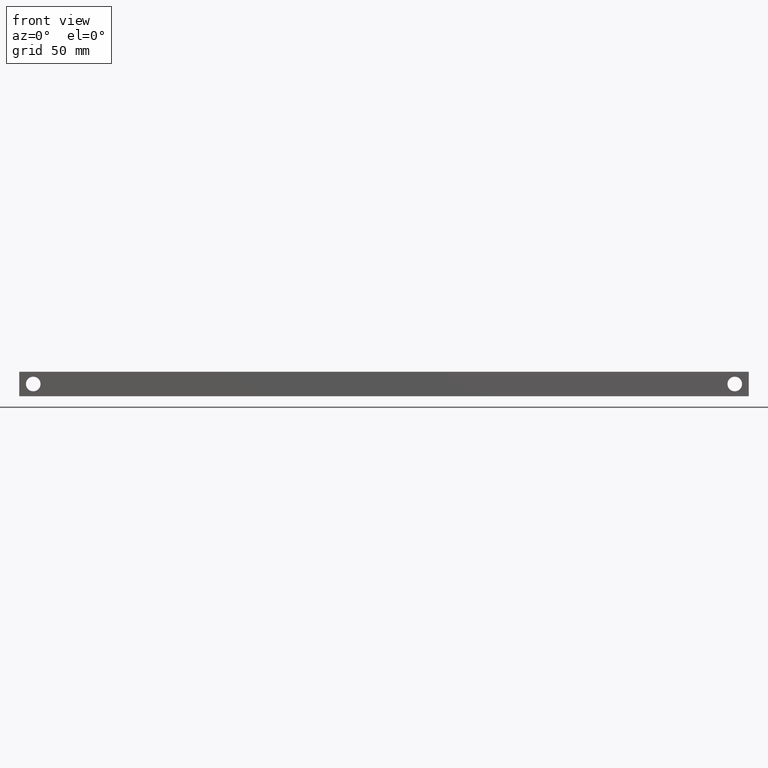
[diagram: clean part render]
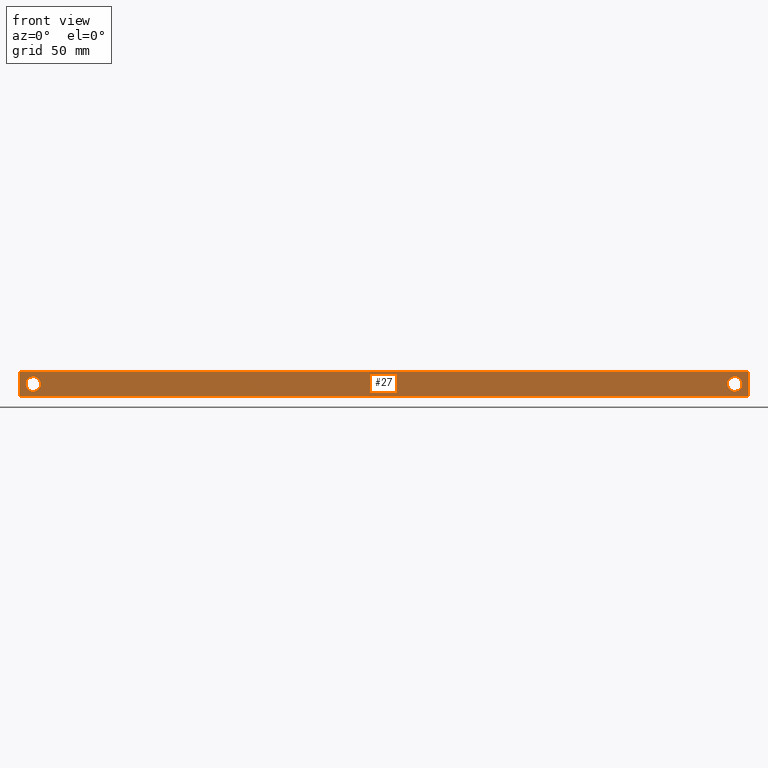
[diagram: same view with one face highlighted and labeled with its STEP entity id]
A machine part, front view. The second image highlights one B-rep face of the part: STEP entity #27.
In plain terms, the highlighted planar face has unit normal (0, -1, 0).
Its self-contained STEP definition (entity closure, byte-faithful):
#27 = ADVANCED_FACE ( 'NONE', ( #3004, #2987, #3000 ), #2989, .T. ) ;
#1316 = ORIENTED_EDGE ( 'NONE', *, *, #12153, .T. ) ;
#1318 = ORIENTED_EDGE ( 'NONE', *, *, #3733, .T. ) ;
#1324 = ORIENTED_EDGE ( 'NONE', *, *, #3827, .T. ) ;
#1328 = ORIENTED_EDGE ( 'NONE', *, *, #12134, .T. ) ;
#1334 = ORIENTED_EDGE ( 'NONE', *, *, #8565, .T. ) ;
#1350 = ORIENTED_EDGE ( 'NONE', *, *, #12154, .T. ) ;
#1373 = ORIENTED_EDGE ( 'NONE', *, *, #12124, .T. ) ;
#1375 = ORIENTED_EDGE ( 'NONE', *, *, #8544, .T. ) ;
#1679 = AXIS2_PLACEMENT_3D ( 'NONE', #9400, #9378, #9401 ) ;
#1720 = CIRCLE ( 'NONE', #1679, 2.999999999999990700 ) ;
#1747 = AXIS2_PLACEMENT_3D ( 'NONE', #9421, #9452, #9454 ) ;
#1781 = CIRCLE ( 'NONE', #1747, 2.999999999999990700 ) ;
#1802 = VECTOR ( 'NONE', #8752, 1000.000000000000000 ) ;
#1815 = VECTOR ( 'NONE', #8739, 1000.000000000000000 ) ;
#1862 = VECTOR ( 'NONE', #8828, 1000.000000000000000 ) ;
#1878 = VECTOR ( 'NONE', #8803, 1000.000000000000000 ) ;
#2987 = FACE_OUTER_BOUND ( 'NONE', #13171, .T. ) ;
#2988 = DIRECTION ( 'NONE',  ( 0.0000000000000000000, -0.0000000000000000000, -1.000000000000000000 ) ) ;
#2989 = PLANE ( 'NONE',  #7013 ) ;
#3000 = FACE_BOUND ( 'NONE', #13074, .T. ) ;
#3004 = FACE_BOUND ( 'NONE', #13220, .T. ) ;
#3009 = DIRECTION ( 'NONE',  ( 0.0000000000000000000, -1.000000000000000000, 0.0000000000000000000 ) ) ;
#3016 = CARTESIAN_POINT ( 'NONE',  ( 0.0000000000000000000, 0.0000000000000000000, -10.00000000000000000 ) ) ;
#3733 = EDGE_CURVE ( 'NONE', #12654, #12688, #6336, .T. ) ;
#3827 = EDGE_CURVE ( 'NONE', #12668, #12635, #6475, .T. ) ;
#5460 = DIRECTION ( 'NONE',  ( 0.0000000000000000000, 1.000000000000000000, 0.0000000000000000000 ) ) ;
#5463 = CARTESIAN_POINT ( 'NONE',  ( 297.7500000000000000, 8.500145032286354800E-014, -5.000000000000000000 ) ) ;
#5466 = DIRECTION ( 'NONE',  ( 0.0000000000000000000, 0.0000000000000000000, 1.000000000000000000 ) ) ;
#6336 = CIRCLE ( 'NONE', #6347, 2.999999999999990700 ) ;
#6347 = AXIS2_PLACEMENT_3D ( 'NONE', #10603, #10604, #10611 ) ;
#6475 = CIRCLE ( 'NONE', #6478, 2.999999999999990700 ) ;
#6478 = AXIS2_PLACEMENT_3D ( 'NONE', #5463, #5460, #5466 ) ;
#7013 = AXIS2_PLACEMENT_3D ( 'NONE', #3016, #3009, #2988 ) ;
#8544 = EDGE_CURVE ( 'NONE', #12688, #12654, #1720, .T. ) ;
#8565 = EDGE_CURVE ( 'NONE', #12635, #12668, #1781, .T. ) ;
#8718 = LINE ( 'NONE', #8733, #1815 ) ;
#8733 = CARTESIAN_POINT ( 'NONE',  ( 0.0000000000000000000, 0.0000000000000000000, 0.0000000000000000000 ) ) ;
#8739 = DIRECTION ( 'NONE',  ( -1.000000000000000000, 0.0000000000000000000, -0.0000000000000000000 ) ) ;
#8752 = DIRECTION ( 'NONE',  ( 0.0000000000000000000, 0.0000000000000000000, 1.000000000000000000 ) ) ;
#8753 = CARTESIAN_POINT ( 'NONE',  ( 303.5000000000000000, 0.0000000000000000000, 0.0000000000000000000 ) ) ;
#8777 = LINE ( 'NONE', #8753, #1802 ) ;
#8789 = CARTESIAN_POINT ( 'NONE',  ( 4.500000000000001800, 0.0000000000000000000, 0.0000000000000000000 ) ) ;
#8803 = DIRECTION ( 'NONE',  ( 0.0000000000000000000, 0.0000000000000000000, -1.000000000000000000 ) ) ;
#8809 = CARTESIAN_POINT ( 'NONE',  ( 0.0000000000000000000, 0.0000000000000000000, -10.00000000000000000 ) ) ;
#8821 = LINE ( 'NONE', #8789, #1878 ) ;
#8825 = LINE ( 'NONE', #8809, #1862 ) ;
#8828 = DIRECTION ( 'NONE',  ( 1.000000000000000000, 0.0000000000000000000, 0.0000000000000000000 ) ) ;
#8897 = CARTESIAN_POINT ( 'NONE',  ( 297.7500000000000000, 8.500145032286354800E-014, -2.000000000000009800 ) ) ;
#8958 = CARTESIAN_POINT ( 'NONE',  ( 303.5000000000000000, 0.0000000000000000000, -10.00000000000000000 ) ) ;
#8965 = CARTESIAN_POINT ( 'NONE',  ( 303.5000000000000000, 0.0000000000000000000, 0.0000000000000000000 ) ) ;
#8997 = CARTESIAN_POINT ( 'NONE',  ( 297.7500000000000000, 8.500145032286354800E-014, -7.999999999999989300 ) ) ;
#9006 = CARTESIAN_POINT ( 'NONE',  ( 4.500000000000001800, 0.0000000000000000000, -10.00000000000000000 ) ) ;
#9010 = CARTESIAN_POINT ( 'NONE',  ( 10.25000000000000200, 8.500145032286354800E-014, -7.999999999999989300 ) ) ;
#9012 = CARTESIAN_POINT ( 'NONE',  ( 10.25000000000000200, 8.500145032286354800E-014, -2.000000000000009800 ) ) ;
#9041 = CARTESIAN_POINT ( 'NONE',  ( 4.500000000000001800, 0.0000000000000000000, 0.0000000000000000000 ) ) ;
#9378 = DIRECTION ( 'NONE',  ( 0.0000000000000000000, 1.000000000000000000, 0.0000000000000000000 ) ) ;
#9400 = CARTESIAN_POINT ( 'NONE',  ( 10.25000000000000200, 8.500145032286354800E-014, -5.000000000000000000 ) ) ;
#9401 = DIRECTION ( 'NONE',  ( 0.0000000000000000000, 0.0000000000000000000, 1.000000000000000000 ) ) ;
#9421 = CARTESIAN_POINT ( 'NONE',  ( 297.7500000000000000, 8.500145032286354800E-014, -5.000000000000000000 ) ) ;
#9452 = DIRECTION ( 'NONE',  ( 0.0000000000000000000, 1.000000000000000000, 0.0000000000000000000 ) ) ;
#9454 = DIRECTION ( 'NONE',  ( 0.0000000000000000000, 0.0000000000000000000, 1.000000000000000000 ) ) ;
#10603 = CARTESIAN_POINT ( 'NONE',  ( 10.25000000000000200, 8.500145032286354800E-014, -5.000000000000000000 ) ) ;
#10604 = DIRECTION ( 'NONE',  ( 0.0000000000000000000, 1.000000000000000000, 0.0000000000000000000 ) ) ;
#10611 = DIRECTION ( 'NONE',  ( 0.0000000000000000000, 0.0000000000000000000, 1.000000000000000000 ) ) ;
#12124 = EDGE_CURVE ( 'NONE', #13231, #13281, #8718, .T. ) ;
#12134 = EDGE_CURVE ( 'NONE', #13232, #13231, #8777, .T. ) ;
#12153 = EDGE_CURVE ( 'NONE', #13281, #13230, #8821, .T. ) ;
#12154 = EDGE_CURVE ( 'NONE', #13230, #13232, #8825, .T. ) ;
#12635 = VERTEX_POINT ( 'NONE', #8897 ) ;
#12654 = VERTEX_POINT ( 'NONE', #9010 ) ;
#12668 = VERTEX_POINT ( 'NONE', #8997 ) ;
#12688 = VERTEX_POINT ( 'NONE', #9012 ) ;
#13074 = EDGE_LOOP ( 'NONE', ( #1334, #1324 ) ) ;
#13171 = EDGE_LOOP ( 'NONE', ( #1316, #1350, #1328, #1373 ) ) ;
#13220 = EDGE_LOOP ( 'NONE', ( #1375, #1318 ) ) ;
#13230 = VERTEX_POINT ( 'NONE', #9006 ) ;
#13231 = VERTEX_POINT ( 'NONE', #8965 ) ;
#13232 = VERTEX_POINT ( 'NONE', #8958 ) ;
#13281 = VERTEX_POINT ( 'NONE', #9041 ) ;